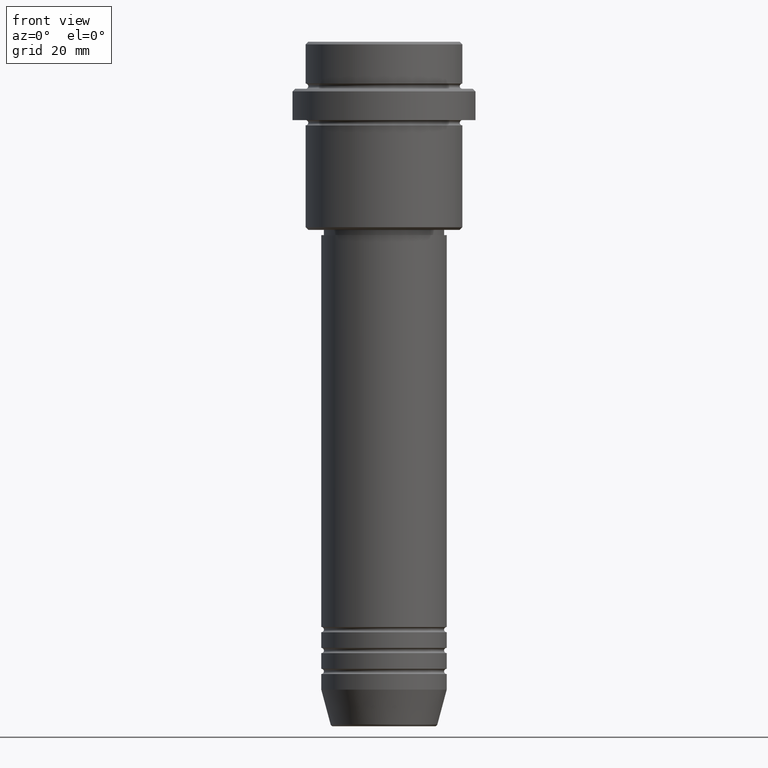
[diagram: clean part render]
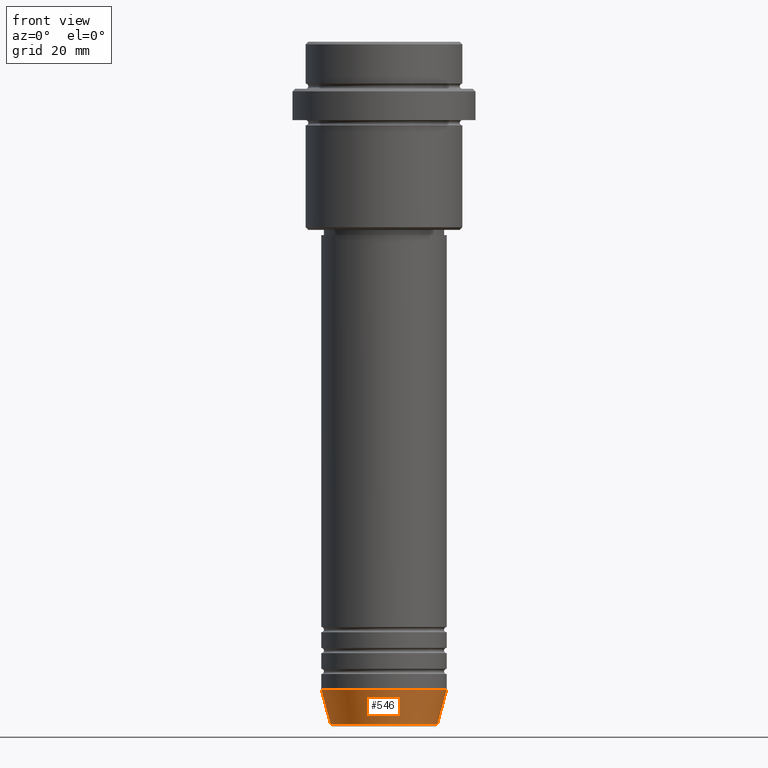
[diagram: same view with one face highlighted and labeled with its STEP entity id]
A machine part, front view. The second image highlights one B-rep face of the part: STEP entity #546.
In plain terms, the highlighted conical surface has half-angle 15 deg.
Its self-contained STEP definition (entity closure, byte-faithful):
#25 = DIRECTION ( 'NONE',  ( -0.000000000000000000, -0.000000000000000000, 1.000000000000000000 ) ) ;
#30 = LINE ( 'NONE', #597, #494 ) ;
#150 = AXIS2_PLACEMENT_3D ( 'NONE', #826, #695, #1130 ) ;
#164 = EDGE_CURVE ( 'NONE', #522, #419, #375, .T. ) ;
#335 = CARTESIAN_POINT ( 'NONE',  ( -10.22365507213718949, 1.360806402472382744E-15, -130.6294095225512422 ) ) ;
#344 = EDGE_LOOP ( 'NONE', ( #933, #1207, #862, #1288 ) ) ;
#375 = CIRCLE ( 'NONE', #487, 10.22365507213718949 ) ;
#419 = VERTEX_POINT ( 'NONE', #1073 ) ;
#487 = AXIS2_PLACEMENT_3D ( 'NONE', #734, #1166, #595 ) ;
#494 = VECTOR ( 'NONE', #931, 1000.000000000000000 ) ;
#522 = VERTEX_POINT ( 'NONE', #335 ) ;
#537 = VECTOR ( 'NONE', #806, 1000.000000000000000 ) ;
#546 = ADVANCED_FACE ( 'NONE', ( #775 ), #1332, .T. ) ;
#595 = DIRECTION ( 'NONE',  ( 1.000000000000000000, 0.000000000000000000, 0.000000000000000000 ) ) ;
#597 = CARTESIAN_POINT ( 'NONE',  ( -12.00000000000000000, 1.469576158976823947E-15, -124.0000000000000000 ) ) ;
#695 = DIRECTION ( 'NONE',  ( -0.000000000000000000, -0.000000000000000000, 1.000000000000000000 ) ) ;
#719 = AXIS2_PLACEMENT_3D ( 'NONE', #788, #25, #1194 ) ;
#734 = CARTESIAN_POINT ( 'NONE',  ( 0.000000000000000000, 0.000000000000000000, -130.6294095225512422 ) ) ;
#773 = EDGE_CURVE ( 'NONE', #977, #1149, #1314, .T. ) ;
#775 = FACE_OUTER_BOUND ( 'NONE', #344, .T. ) ;
#788 = CARTESIAN_POINT ( 'NONE',  ( 0.000000000000000000, 0.000000000000000000, -124.0000000000000000 ) ) ;
#806 = DIRECTION ( 'NONE',  ( 0.2588190451025213501, 0.000000000000000000, 0.9659258262890680902 ) ) ;
#826 = CARTESIAN_POINT ( 'NONE',  ( 0.000000000000000000, 0.000000000000000000, -124.0000000000000000 ) ) ;
#862 = ORIENTED_EDGE ( 'NONE', *, *, #1145, .T. ) ;
#931 = DIRECTION ( 'NONE',  ( -0.2588190451025213501, 3.169619151431772337E-17, 0.9659258262890680902 ) ) ;
#933 = ORIENTED_EDGE ( 'NONE', *, *, #1239, .F. ) ;
#977 = VERTEX_POINT ( 'NONE', #1090 ) ;
#1073 = CARTESIAN_POINT ( 'NONE',  ( 10.22365507213718949, 0.000000000000000000, -130.6294095225512422 ) ) ;
#1090 = CARTESIAN_POINT ( 'NONE',  ( -12.00000000000000000, 1.469576158976823947E-15, -124.0000000000000000 ) ) ;
#1119 = CARTESIAN_POINT ( 'NONE',  ( 12.00000000000000000, 0.000000000000000000, -124.0000000000000000 ) ) ;
#1130 = DIRECTION ( 'NONE',  ( 1.000000000000000000, 0.000000000000000000, 0.000000000000000000 ) ) ;
#1145 = EDGE_CURVE ( 'NONE', #419, #1149, #1354, .T. ) ;
#1149 = VERTEX_POINT ( 'NONE', #1119 ) ;
#1166 = DIRECTION ( 'NONE',  ( -0.000000000000000000, -0.000000000000000000, 1.000000000000000000 ) ) ;
#1194 = DIRECTION ( 'NONE',  ( 1.000000000000000000, 0.000000000000000000, 0.000000000000000000 ) ) ;
#1207 = ORIENTED_EDGE ( 'NONE', *, *, #164, .T. ) ;
#1239 = EDGE_CURVE ( 'NONE', #522, #977, #30, .T. ) ;
#1288 = ORIENTED_EDGE ( 'NONE', *, *, #773, .F. ) ;
#1314 = CIRCLE ( 'NONE', #150, 12.00000000000000000 ) ;
#1332 = CONICAL_SURFACE ( 'NONE', #719, 12.00000000000000000, 0.2617993877991500740 ) ;
#1347 = CARTESIAN_POINT ( 'NONE',  ( 12.00000000000000000, 0.000000000000000000, -124.0000000000000000 ) ) ;
#1354 = LINE ( 'NONE', #1347, #537 ) ;